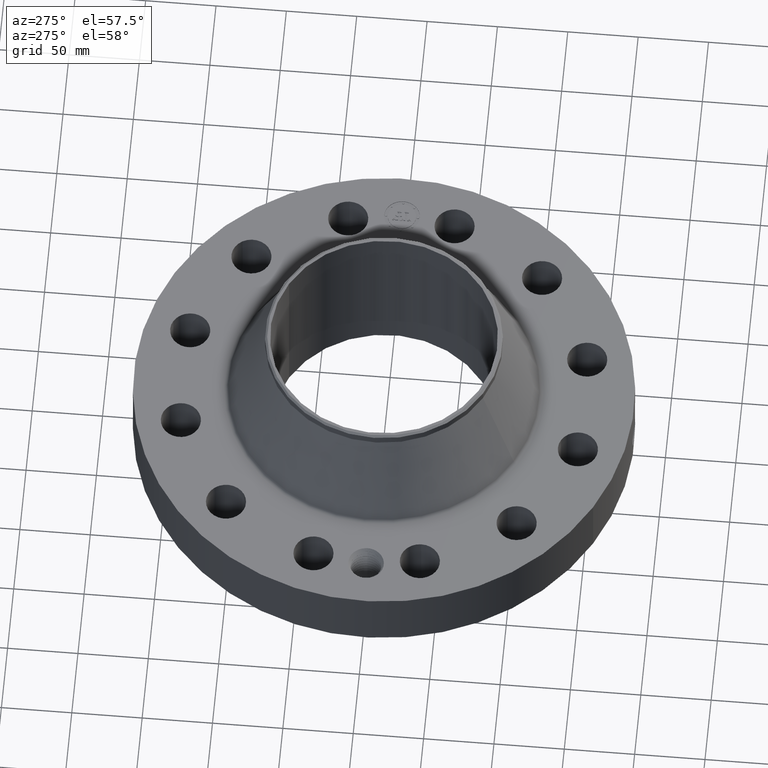
[diagram: clean part render]
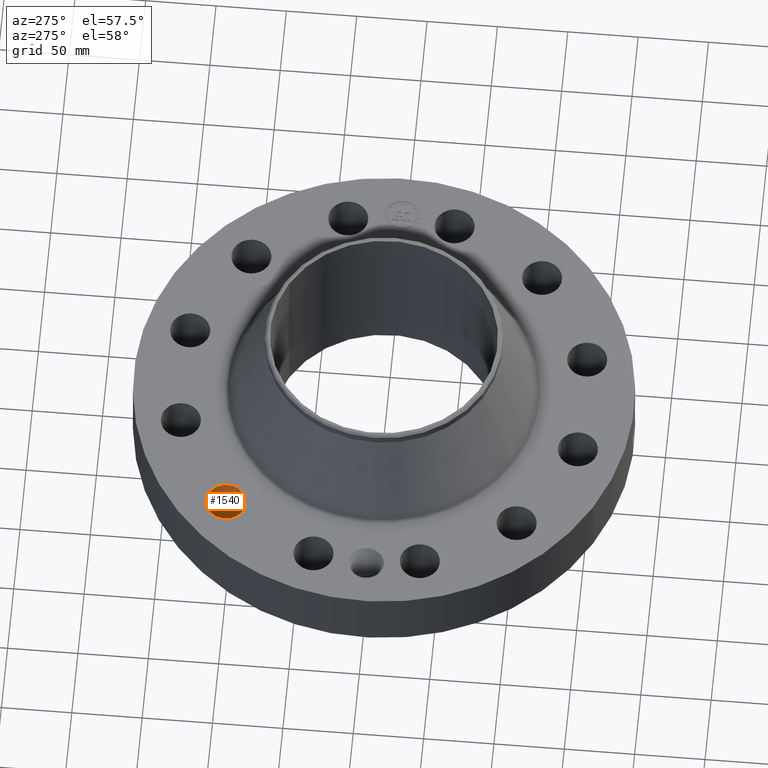
[diagram: same view with one face highlighted and labeled with its STEP entity id]
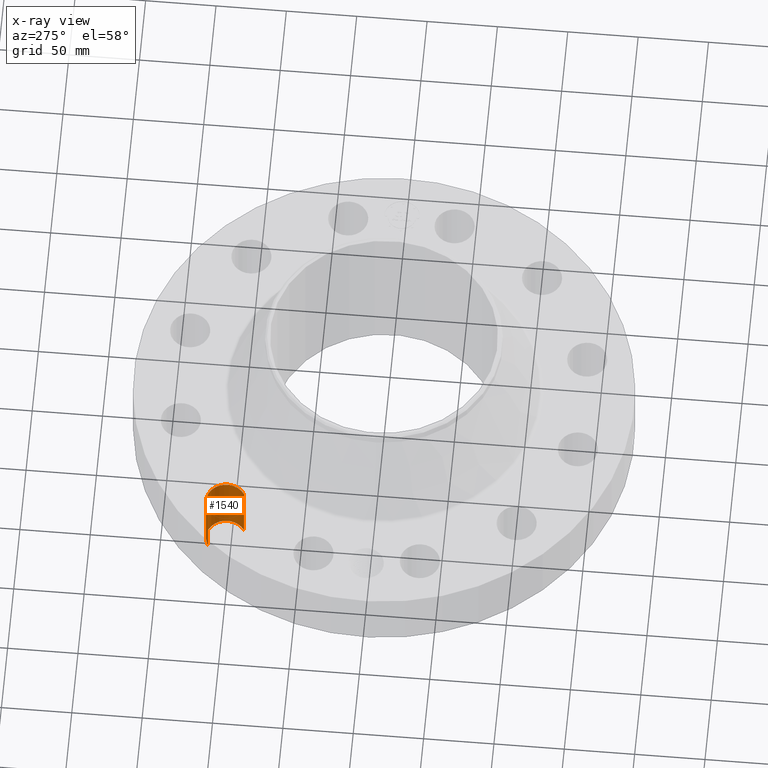
[diagram: x-ray of the same camera — body ghosted, the highlighted face saturated]
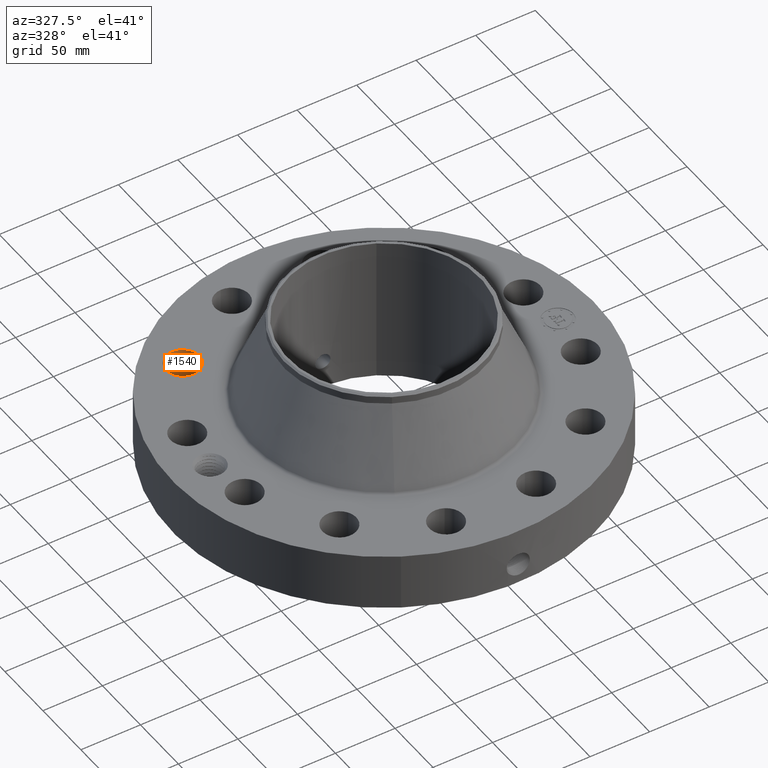
[diagram: same view with one face highlighted and labeled with its STEP entity id]
A machine part, auxiliary view. The second image highlights one B-rep face of the part: STEP entity #1540.
The next image is the same camera in x-ray: the body ghosted, the highlighted face saturated — about 1% of this face is hidden behind the body in this view.
A second angle (auxiliary view) of the same face is appended — the face is thin or edge-on in the first view.
In plain terms, the highlighted cylindrical surface (edge-blend (fillet) strip) has radius 14.224 mm, axis along (0, 0, -1).
Its self-contained STEP definition (entity closure, byte-faithful):
#379=AXIS2_PLACEMENT_3D('Circle Axis2P3D',#377,#378,$) ;
#761=AXIS2_PLACEMENT_3D('Circle Axis2P3D',#759,#760,$) ;
#1515=AXIS2_PLACEMENT_3D('Cylinder Axis2P3D',#1512,#1513,#1514) ;
#372=CARTESIAN_POINT('Vertex',(-3.77449821884,3.58763184494,0.250000000001)) ;
#374=CARTESIAN_POINT('Vertex',(-4.35722976484,4.54409613874,0.250000000001)) ;
#377=CARTESIAN_POINT('Axis2P3D Location',(-4.06586399184,4.06586399184,0.250000000001)) ;
#759=CARTESIAN_POINT('Axis2P3D Location',(-4.06586399184,4.06586399184,2.13000000001)) ;
#763=CARTESIAN_POINT('Vertex',(-4.35722976484,4.54409613874,2.13000000001)) ;
#765=CARTESIAN_POINT('Vertex',(-3.77449821884,3.58763184494,2.13000000001)) ;
#1512=CARTESIAN_POINT('Axis2P3D Location',(-4.06586399184,4.06586399184,2.12606299213)) ;
#1517=CARTESIAN_POINT('Line Origine',(-3.77449821884,3.58763184494,1.19)) ;
#1522=CARTESIAN_POINT('Line Origine',(-4.35722976484,4.54409613874,1.19)) ;
#378=DIRECTION('Axis2P3D Direction',(0.,0.,-0.0393700787402)) ;
#760=DIRECTION('Axis2P3D Direction',(0.,0.,-0.0393700787402)) ;
#1513=DIRECTION('Axis2P3D Direction',(0.,0.,-0.0393700787402)) ;
#1514=DIRECTION('Axis2P3D XDirection',(-0.0204840954021,0.0336214951417,0.)) ;
#1518=DIRECTION('Vector Direction',(0.,0.,-0.0393700787402)) ;
#1523=DIRECTION('Vector Direction',(0.,0.,-0.0393700787402)) ;
#1519=VECTOR('Line Direction',#1518,0.0393700787402) ;
#1524=VECTOR('Line Direction',#1523,0.0393700787402) ;
#1535=ORIENTED_EDGE('',*,*,#1526,.F.) ;
#1536=ORIENTED_EDGE('',*,*,#381,.T.) ;
#1537=ORIENTED_EDGE('',*,*,#1521,.T.) ;
#1538=ORIENTED_EDGE('',*,*,#767,.F.) ;
#1540=ADVANCED_FACE('PartBody',(#1539),#1516,.F.) ;
#380=CIRCLE('generated circle',#379,0.560000000002) ;
#762=CIRCLE('generated circle',#761,0.560000000002) ;
#1516=CYLINDRICAL_SURFACE('generated cylinder',#1515,0.560000000002) ;
#381=EDGE_CURVE('',#375,#373,#380,.T.) ;
#767=EDGE_CURVE('',#764,#766,#762,.T.) ;
#1521=EDGE_CURVE('',#373,#766,#1520,.F.) ;
#1526=EDGE_CURVE('',#375,#764,#1525,.F.) ;
#1534=EDGE_LOOP('',(#1535,#1536,#1537,#1538)) ;
#1539=FACE_OUTER_BOUND('',#1534,.T.) ;
#1520=LINE('Line',#1517,#1519) ;
#1525=LINE('Line',#1522,#1524) ;
#373=VERTEX_POINT('',#372) ;
#375=VERTEX_POINT('',#374) ;
#764=VERTEX_POINT('',#763) ;
#766=VERTEX_POINT('',#765) ;